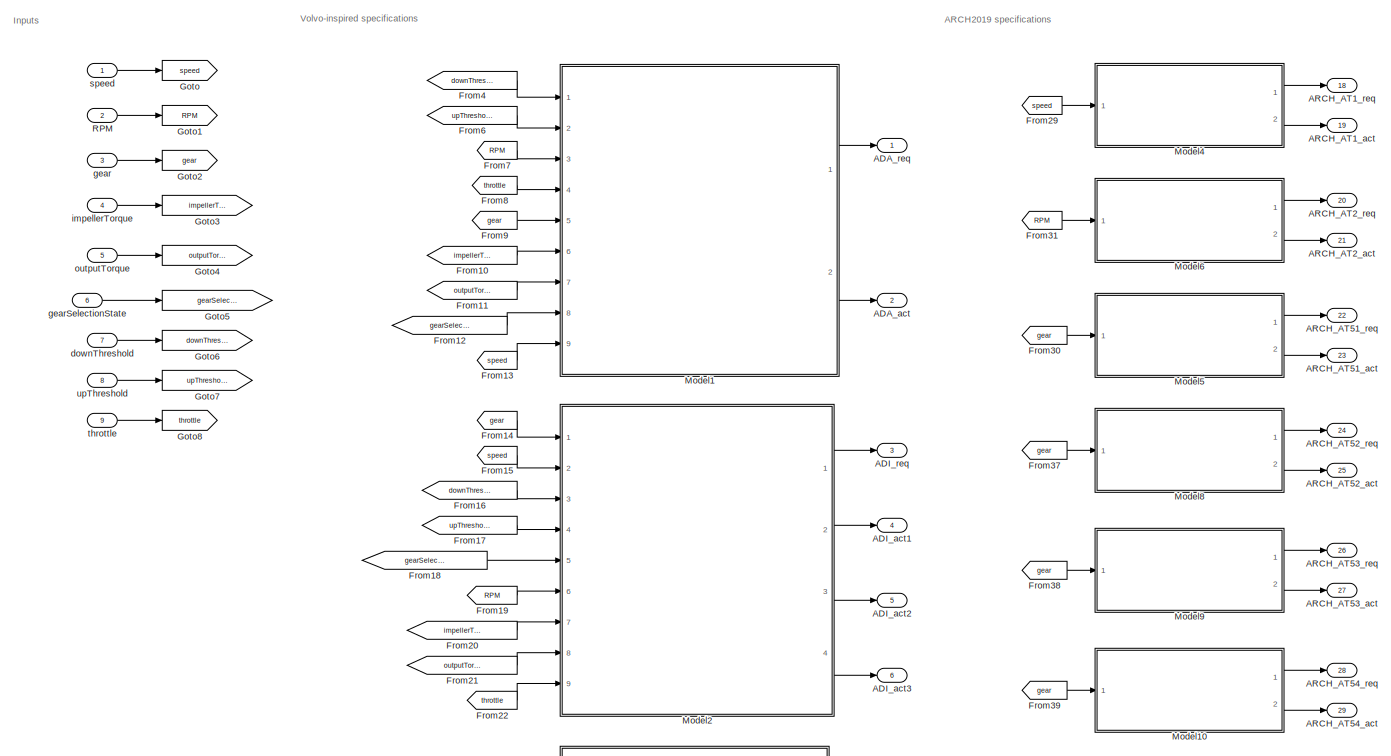
[diagram: root canvas - part 1/3, full width, top band]
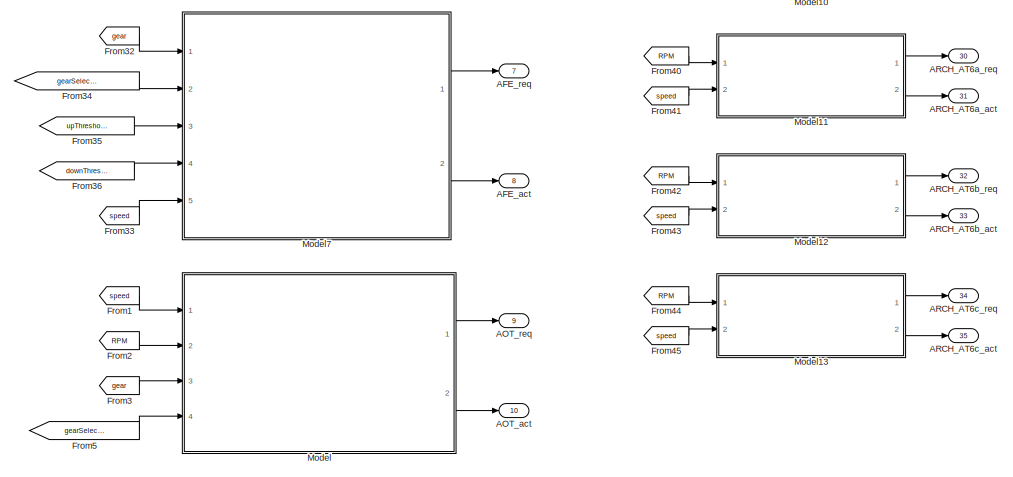
[diagram: root canvas - part 2/3, central region]
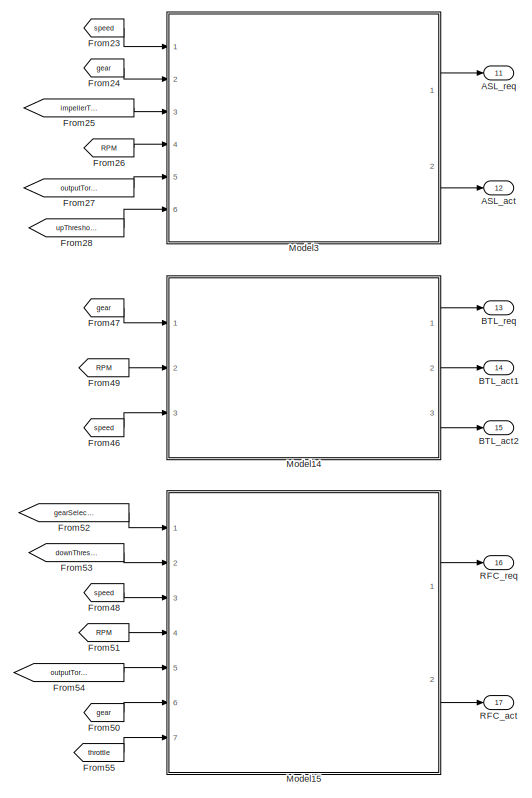
[diagram: root canvas - part 3/3, bottom center region]
MODEL slx_729b57270146
KIND model
CONFIG AbsTol = auto
CONFIG EnableMultiTasking = off
CONFIG FixedStep = fixedStepSize
CONFIG MaxStep = auto
CONFIG MinStep = auto
CONFIG RelTol = 1e-3
CONFIG SampleTimeConstraint = Unconstrained
CONFIG Solver = FixedStepAuto
CONFIG SolverName = FixedStepAuto
CONFIG StartTime = 0.0
CONFIG StopTime = 10.0
BLOCK [Outport] ADA_act
  IconDisplay = Port number
  Port = 2
  VectorParamsAs1DForOutWhenUnconnected = off
BLOCK [Outport] ADA_req
  IconDisplay = Port number
  VectorParamsAs1DForOutWhenUnconnected = off
BLOCK [Outport] ADI_act1
  IconDisplay = Port number
  Port = 4
  VectorParamsAs1DForOutWhenUnconnected = off
BLOCK [Outport] ADI_act2
  IconDisplay = Port number
  Port = 5
  VectorParamsAs1DForOutWhenUnconnected = off
BLOCK [Outport] ADI_act3
  IconDisplay = Port number
  Port = 6
  VectorParamsAs1DForOutWhenUnconnected = off
BLOCK [Outport] ADI_req
  IconDisplay = Port number
  Port = 3
  VectorParamsAs1DForOutWhenUnconnected = off
BLOCK [Outport] AFE_act
  IconDisplay = Port number
  Port = 8
  VectorParamsAs1DForOutWhenUnconnected = off
BLOCK [Outport] AFE_req
  IconDisplay = Port number
  Port = 7
  VectorParamsAs1DForOutWhenUnconnected = off
BLOCK [Outport] AOT_act
  IconDisplay = Port number
  Port = 10
  VectorParamsAs1DForOutWhenUnconnected = off
BLOCK [Outport] AOT_req
  IconDisplay = Port number
  Port = 9
  VectorParamsAs1DForOutWhenUnconnected = off
BLOCK [Outport] ARCH_AT1_act
  IconDisplay = Port number
  Port = 19
  VectorParamsAs1DForOutWhenUnconnected = off
BLOCK [Outport] ARCH_AT1_req
  IconDisplay = Port number
  Port = 18
  VectorParamsAs1DForOutWhenUnconnected = off
BLOCK [Outport] ARCH_AT2_act
  IconDisplay = Port number
  Port = 21
  VectorParamsAs1DForOutWhenUnconnected = off
BLOCK [Outport] ARCH_AT2_req
  IconDisplay = Port number
  Port = 20
  VectorParamsAs1DForOutWhenUnconnected = off
BLOCK [Outport] ARCH_AT51_act
  IconDisplay = Port number
  Port = 23
  VectorParamsAs1DForOutWhenUnconnected = off
BLOCK [Outport] ARCH_AT51_req
  IconDisplay = Port number
  Port = 22
  VectorParamsAs1DForOutWhenUnconnected = off
BLOCK [Outport] ARCH_AT52_act
  IconDisplay = Port number
  Port = 25
  VectorParamsAs1DForOutWhenUnconnected = off
BLOCK [Outport] ARCH_AT52_req
  IconDisplay = Port number
  Port = 24
  VectorParamsAs1DForOutWhenUnconnected = off
BLOCK [Outport] ARCH_AT53_act
  IconDisplay = Port number
  Port = 27
  VectorParamsAs1DForOutWhenUnconnected = off
BLOCK [Outport] ARCH_AT53_req
  IconDisplay = Port number
  Port = 26
  VectorParamsAs1DForOutWhenUnconnected = off
BLOCK [Outport] ARCH_AT54_act
  IconDisplay = Port number
  Port = 29
  VectorParamsAs1DForOutWhenUnconnected = off
BLOCK [Outport] ARCH_AT54_req
  IconDisplay = Port number
  Port = 28
  VectorParamsAs1DForOutWhenUnconnected = off
BLOCK [Outport] ARCH_AT6a_act
  IconDisplay = Port number
  Port = 31
  VectorParamsAs1DForOutWhenUnconnected = off
BLOCK [Outport] ARCH_AT6a_req
  IconDisplay = Port number
  Port = 30
  VectorParamsAs1DForOutWhenUnconnected = off
BLOCK [Outport] ARCH_AT6b_act
  IconDisplay = Port number
  Port = 33
  VectorParamsAs1DForOutWhenUnconnected = off
BLOCK [Outport] ARCH_AT6b_req
  IconDisplay = Port number
  Port = 32
  VectorParamsAs1DForOutWhenUnconnected = off
BLOCK [Outport] ARCH_AT6c_act
  IconDisplay = Port number
  Port = 35
  VectorParamsAs1DForOutWhenUnconnected = off
BLOCK [Outport] ARCH_AT6c_req
  IconDisplay = Port number
  Port = 34
  VectorParamsAs1DForOutWhenUnconnected = off
BLOCK [Outport] ASL_act
  IconDisplay = Port number
  Port = 12
  VectorParamsAs1DForOutWhenUnconnected = off
BLOCK [Outport] ASL_req
  IconDisplay = Port number
  Port = 11
  VectorParamsAs1DForOutWhenUnconnected = off
BLOCK [Outport] BTL_act1
  IconDisplay = Port number
  Port = 14
  VectorParamsAs1DForOutWhenUnconnected = off
BLOCK [Outport] BTL_act2
  IconDisplay = Port number
  Port = 15
  VectorParamsAs1DForOutWhenUnconnected = off
BLOCK [Outport] BTL_req
  IconDisplay = Port number
  Port = 13
  VectorParamsAs1DForOutWhenUnconnected = off
BLOCK [From] From1
  GotoTag = speed
BLOCK [From] From10
  GotoTag = impellerTorque
BLOCK [From] From11
  GotoTag = outputTorque
BLOCK [From] From12
  GotoTag = gearSelectionState
BLOCK [From] From13
  GotoTag = speed
BLOCK [From] From14
  GotoTag = gear
BLOCK [From] From15
  GotoTag = speed
BLOCK [From] From16
  GotoTag = downThreshold
BLOCK [From] From17
  GotoTag = upThreshold
BLOCK [From] From18
  GotoTag = gearSelectionState
BLOCK [From] From19
  GotoTag = RPM
BLOCK [From] From2
  GotoTag = RPM
BLOCK [From] From20
  GotoTag = impellerTorque
BLOCK [From] From21
  GotoTag = outputTorque
BLOCK [From] From22
  GotoTag = throttle
BLOCK [From] From23
  GotoTag = speed
BLOCK [From] From24
  GotoTag = gear
BLOCK [From] From25
  GotoTag = impellerTorque
BLOCK [From] From26
  GotoTag = RPM
BLOCK [From] From27
  GotoTag = outputTorque
BLOCK [From] From28
  GotoTag = upThreshold
BLOCK [From] From29
  GotoTag = speed
BLOCK [From] From3
  GotoTag = gear
BLOCK [From] From30
  GotoTag = gear
BLOCK [From] From31
  GotoTag = RPM
BLOCK [From] From32
  GotoTag = gear
BLOCK [From] From33
  GotoTag = speed
BLOCK [From] From34
  GotoTag = gearSelectionState
BLOCK [From] From35
  GotoTag = upThreshold
BLOCK [From] From36
  GotoTag = downThreshold
BLOCK [From] From37
  GotoTag = gear
BLOCK [From] From38
  GotoTag = gear
BLOCK [From] From39
  GotoTag = gear
BLOCK [From] From4
  GotoTag = downThreshold
BLOCK [From] From40
  GotoTag = RPM
BLOCK [From] From41
  GotoTag = speed
BLOCK [From] From42
  GotoTag = RPM
BLOCK [From] From43
  GotoTag = speed
BLOCK [From] From44
  GotoTag = RPM
BLOCK [From] From45
  GotoTag = speed
BLOCK [From] From46
  GotoTag = speed
BLOCK [From] From47
  GotoTag = gear
BLOCK [From] From48
  GotoTag = speed
BLOCK [From] From49
  GotoTag = RPM
BLOCK [From] From5
  GotoTag = gearSelectionState
BLOCK [From] From50
  GotoTag = gear
BLOCK [From] From51
  GotoTag = RPM
BLOCK [From] From52
  GotoTag = gearSelectionState
BLOCK [From] From53
  GotoTag = downThreshold
BLOCK [From] From54
  GotoTag = outputTorque
BLOCK [From] From55
  GotoTag = throttle
BLOCK [From] From6
  GotoTag = upThreshold
BLOCK [From] From7
  GotoTag = RPM
BLOCK [From] From8
  GotoTag = throttle
BLOCK [From] From9
  GotoTag = gear
BLOCK [Goto] Goto
  GotoTag = speed
BLOCK [Goto] Goto1
  GotoTag = RPM
BLOCK [Goto] Goto2
  GotoTag = gear
BLOCK [Goto] Goto3
  GotoTag = impellerTorque
BLOCK [Goto] Goto4
  GotoTag = outputTorque
BLOCK [Goto] Goto5
  GotoTag = gearSelectionState
BLOCK [Goto] Goto6
  GotoTag = downThreshold
BLOCK [Goto] Goto7
  GotoTag = upThreshold
BLOCK [Goto] Goto8
  GotoTag = throttle
BLOCK [ModelReference] Model
  ModelNameDialog = AOT.slx
  ModelReferenceVersion = 1.170
  Ports = [4, 2]
BLOCK [ModelReference] Model1
  ModelNameDialog = ADA.slx
  ModelReferenceVersion = 1.259
  Ports = [9, 2]
BLOCK [ModelReference] Model10
  ModelNameDialog = ARCH_AT54.slx
  ModelReferenceVersion = 1.192
  Ports = [1, 2]
BLOCK [ModelReference] Model11
  ModelNameDialog = ARCH_AT6a.slx
  ModelReferenceVersion = 1.218
  Ports = [2, 2]
BLOCK [ModelReference] Model12
  ModelNameDialog = ARCH_AT6b.slx
  ModelReferenceVersion = 1.223
  Ports = [2, 2]
BLOCK [ModelReference] Model13
  ModelNameDialog = ARCH_AT6c.slx
  ModelReferenceVersion = 1.221
  Ports = [2, 2]
BLOCK [ModelReference] Model14
  ModelNameDialog = BTL.slx
  ModelReferenceVersion = 1.2366
  Ports = [3, 3]
BLOCK [ModelReference] Model15
  ModelNameDialog = RFC.slx
  ModelReferenceVersion = 1.2376
  Ports = [7, 2]
BLOCK [ModelReference] Model2
  ModelNameDialog = ADI.slx
  ModelReferenceVersion = 1.105
  Ports = [9, 4]
BLOCK [ModelReference] Model3
  ModelNameDialog = ASL.slx
  ModelReferenceVersion = 1.167
  Ports = [6, 2]
BLOCK [ModelReference] Model4
  ModelNameDialog = ARCH_AT1.slx
  ModelReferenceVersion = 1.161
  Ports = [1, 2]
BLOCK [ModelReference] Model5
  ModelNameDialog = ARCH_AT51.slx
  ModelReferenceVersion = 1.191
  Ports = [1, 2]
BLOCK [ModelReference] Model6
  ModelNameDialog = ARCH_AT2.slx
  ModelReferenceVersion = 1.163
  Ports = [1, 2]
BLOCK [ModelReference] Model7
  ModelNameDialog = AFE.slx
  ModelReferenceVersion = 1.177
  Ports = [5, 2]
BLOCK [ModelReference] Model8
  ModelNameDialog = ARCH_AT52.slx
  ModelReferenceVersion = 1.193
  Ports = [1, 2]
BLOCK [ModelReference] Model9
  ModelNameDialog = ARCH_AT53.slx
  ModelReferenceVersion = 1.194
  Ports = [1, 2]
BLOCK [Outport] RFC_act
  IconDisplay = Port number
  Port = 17
  VectorParamsAs1DForOutWhenUnconnected = off
BLOCK [Outport] RFC_req
  IconDisplay = Port number
  Port = 16
  VectorParamsAs1DForOutWhenUnconnected = off
BLOCK [Inport] RPM
  IconDisplay = Port number
  Port = 2
BLOCK [Inport] downThreshold
  IconDisplay = Port number
  OutDataTypeStr = double
  Port = 7
BLOCK [Inport] gear
  IconDisplay = Port number
  Port = 3
BLOCK [Inport] gearSelectionState
  IconDisplay = Port number
  Port = 6
BLOCK [Inport] impellerTorque
  IconDisplay = Port number
  Port = 4
BLOCK [Inport] outputTorque
  IconDisplay = Port number
  Port = 5
BLOCK [Inport] speed
  IconDisplay = Port number
BLOCK [Inport] throttle
  IconDisplay = Port number
  Port = 9
BLOCK [Inport] upThreshold
  IconDisplay = Port number
  OutDataTypeStr = double
  Port = 8
ANNOTATION (root): ARCH2019 specifications
ANNOTATION (root): Inputs
ANNOTATION (root): Volvo-inspired specifications
LINE From10:1 -> Model1:6
LINE From11:1 -> Model1:7
LINE From12:1 -> Model1:8
LINE From13:1 -> Model1:9
LINE From14:1 -> Model2:1
LINE From15:1 -> Model2:2
LINE From16:1 -> Model2:3
LINE From17:1 -> Model2:4
LINE From18:1 -> Model2:5
LINE From19:1 -> Model2:6
LINE From1:1 -> Model:1
LINE From20:1 -> Model2:7
LINE From21:1 -> Model2:8
LINE From22:1 -> Model2:9
LINE From23:1 -> Model3:1
LINE From24:1 -> Model3:2
LINE From25:1 -> Model3:3
LINE From26:1 -> Model3:4
LINE From27:1 -> Model3:5
LINE From28:1 -> Model3:6
LINE From29:1 -> Model4:1
LINE From2:1 -> Model:2
LINE From30:1 -> Model5:1
LINE From31:1 -> Model6:1
LINE From32:1 -> Model7:1
LINE From33:1 -> Model7:5
LINE From34:1 -> Model7:2
LINE From35:1 -> Model7:3
LINE From36:1 -> Model7:4
LINE From37:1 -> Model8:1
LINE From38:1 -> Model9:1
LINE From39:1 -> Model10:1
LINE From3:1 -> Model:3
LINE From40:1 -> Model11:1
LINE From41:1 -> Model11:2
LINE From42:1 -> Model12:1
LINE From43:1 -> Model12:2
LINE From44:1 -> Model13:1
LINE From45:1 -> Model13:2
LINE From46:1 -> Model14:3
LINE From47:1 -> Model14:1
LINE From48:1 -> Model15:3
LINE From49:1 -> Model14:2
LINE From4:1 -> Model1:1
LINE From50:1 -> Model15:6
LINE From51:1 -> Model15:4
LINE From52:1 -> Model15:1
LINE From53:1 -> Model15:2
LINE From54:1 -> Model15:5
LINE From55:1 -> Model15:7
LINE From5:1 -> Model:4
LINE From6:1 -> Model1:2
LINE From7:1 -> Model1:3
LINE From8:1 -> Model1:4
LINE From9:1 -> Model1:5
LINE Model10:1 -> ARCH_AT54_req:1
LINE Model10:2 -> ARCH_AT54_act:1
LINE Model11:1 -> ARCH_AT6a_req:1
LINE Model11:2 -> ARCH_AT6a_act:1
LINE Model12:1 -> ARCH_AT6b_req:1
LINE Model12:2 -> ARCH_AT6b_act:1
LINE Model13:1 -> ARCH_AT6c_req:1
LINE Model13:2 -> ARCH_AT6c_act:1
LINE Model14:1 -> BTL_req:1
LINE Model14:2 -> BTL_act1:1
LINE Model14:3 -> BTL_act2:1
LINE Model15:1 -> RFC_req:1
LINE Model15:2 -> RFC_act:1
LINE Model1:1 -> ADA_req:1
LINE Model1:2 -> ADA_act:1
LINE Model2:1 -> ADI_req:1
LINE Model2:2 -> ADI_act1:1
LINE Model2:3 -> ADI_act2:1
LINE Model2:4 -> ADI_act3:1
LINE Model3:1 -> ASL_req:1
LINE Model3:2 -> ASL_act:1
LINE Model4:1 -> ARCH_AT1_req:1
LINE Model4:2 -> ARCH_AT1_act:1
LINE Model5:1 -> ARCH_AT51_req:1
LINE Model5:2 -> ARCH_AT51_act:1
LINE Model6:1 -> ARCH_AT2_req:1
LINE Model6:2 -> ARCH_AT2_act:1
LINE Model7:1 -> AFE_req:1
LINE Model7:2 -> AFE_act:1
LINE Model8:1 -> ARCH_AT52_req:1
LINE Model8:2 -> ARCH_AT52_act:1
LINE Model9:1 -> ARCH_AT53_req:1
LINE Model9:2 -> ARCH_AT53_act:1
LINE Model:1 -> AOT_req:1
LINE Model:2 -> AOT_act:1
LINE RPM:1 -> Goto1:1
LINE downThreshold:1 -> Goto6:1
LINE gear:1 -> Goto2:1
LINE gearSelectionState:1 -> Goto5:1
LINE impellerTorque:1 -> Goto3:1
LINE outputTorque:1 -> Goto4:1
LINE speed:1 -> Goto:1
LINE throttle:1 -> Goto8:1
LINE upThreshold:1 -> Goto7:1
